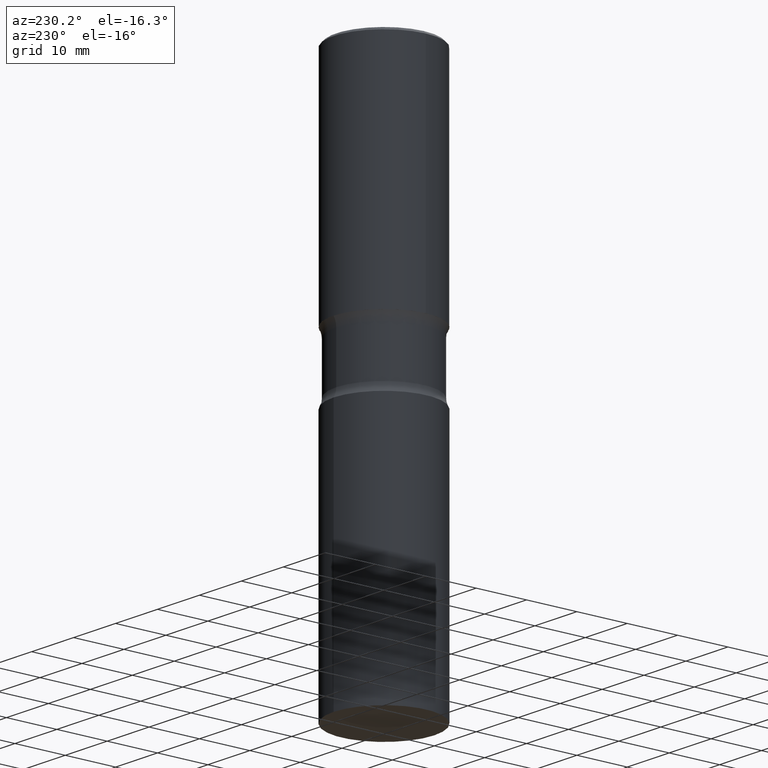
[diagram: clean part render]
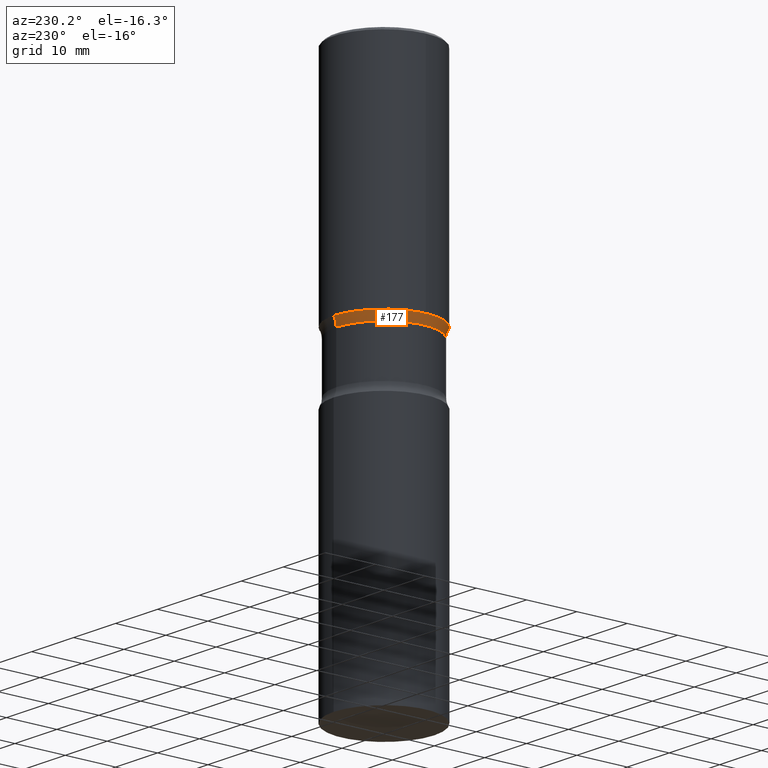
[diagram: same view with one face highlighted and labeled with its STEP entity id]
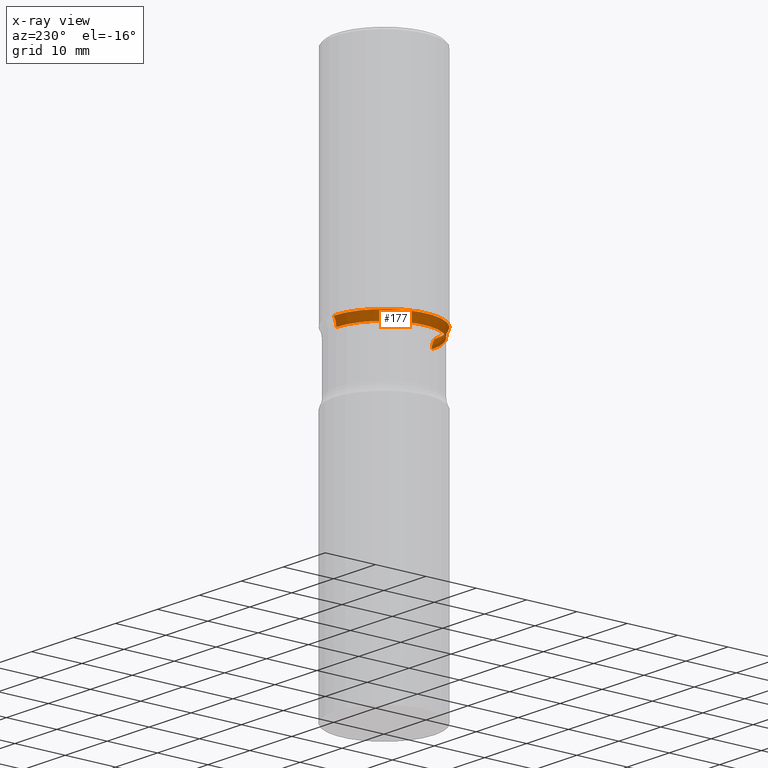
[diagram: x-ray of the same camera — body ghosted, the highlighted face saturated]
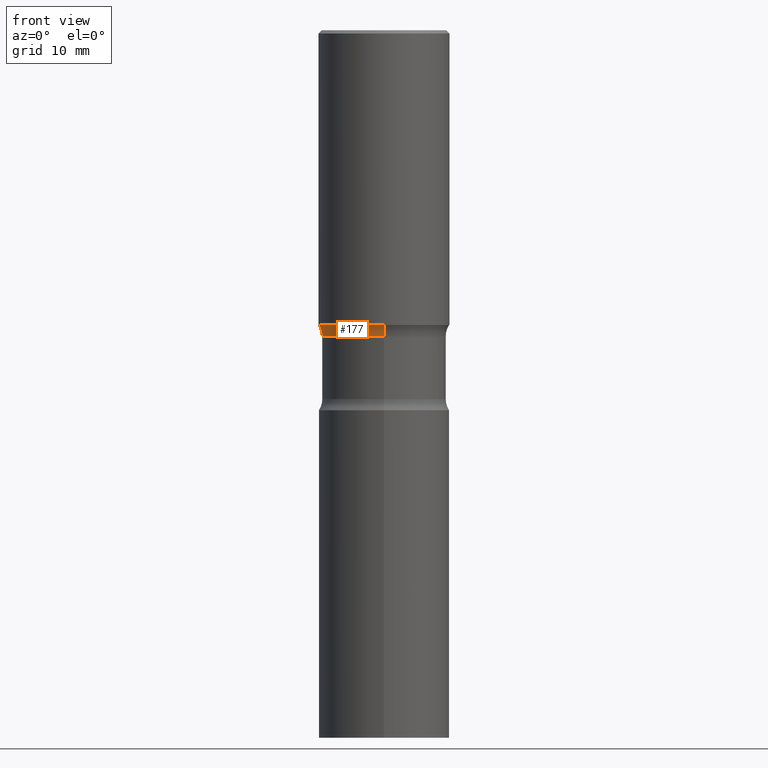
[diagram: same view with one face highlighted and labeled with its STEP entity id]
A machine part, auxiliary view. The second image highlights one B-rep face of the part: STEP entity #177.
The next image is the same camera in x-ray: the body ghosted, the highlighted face saturated — about 1% of this face is hidden behind the body in this view.
A second angle (front view) of the same face is appended — the face is thin or edge-on in the first view.
In plain terms, the highlighted toroidal blend (fillet) surface has major radius 12.6619 mm and minor (blend) radius 3.175 mm.
Its self-contained STEP definition (entity closure, byte-faithful):
#20 = CARTESIAN_POINT ( 'NONE',  ( 2.749192406205126998E-15, 0.3936999999999938882, -1.771700000000000941 ) ) ;
#21 = VERTEX_POINT ( 'NONE', #254 ) ;
#27 = CARTESIAN_POINT ( 'NONE',  ( 4.499251595492830041E-29, -6.423738853135956332E-15, -1.839831930840098329 ) ) ;
#42 = AXIS2_PLACEMENT_3D ( 'NONE', #407, #76, #258 ) ;
#53 = AXIS2_PLACEMENT_3D ( 'NONE', #154, #256, #464 ) ;
#58 = EDGE_CURVE ( 'NONE', #419, #276, #338, .T. ) ;
#69 = FACE_OUTER_BOUND ( 'NONE', #287, .T. ) ;
#76 = DIRECTION ( 'NONE',  ( 2.422342619709238593E-29, -3.524599354137422645E-15, -1.000000000000000000 ) ) ;
#87 = CIRCLE ( 'NONE', #42, 0.3937000000000000499 ) ;
#103 = CARTESIAN_POINT ( 'NONE',  ( -2.631687031945114564E-15, -0.3735000000000064380, -1.839831930840096996 ) ) ;
#109 = DIRECTION ( 'NONE',  ( -6.982962677686265133E-15, -1.000000000000000000, 0.000000000000000000 ) ) ;
#116 = EDGE_CURVE ( 'NONE', #21, #402, #87, .T. ) ;
#142 = DIRECTION ( 'NONE',  ( 2.422342619709238593E-29, -3.524599354137422645E-15, -1.000000000000000000 ) ) ;
#154 = CARTESIAN_POINT ( 'NONE',  ( -3.419958251889063102E-15, -0.4985000000000064380, -1.839831930840096774 ) ) ;
#165 = CIRCLE ( 'NONE', #53, 0.1250000000000000278 ) ;
#177 = ADVANCED_FACE ( 'NONE', ( #69 ), #305, .F. ) ;
#183 = DIRECTION ( 'NONE',  ( 2.422342619709238593E-29, -3.524599354137422645E-15, -1.000000000000000000 ) ) ;
#193 = ORIENTED_EDGE ( 'NONE', *, *, #440, .T. ) ;
#203 = DIRECTION ( 'NONE',  ( 6.982962677686265922E-15, 1.000000000000000000, -3.657092360996336056E-15 ) ) ;
#232 = CARTESIAN_POINT ( 'NONE',  ( 2.608136560115865171E-15, 0.3734999999999935594, -1.839831930840099661 ) ) ;
#254 = CARTESIAN_POINT ( 'NONE',  ( -2.700978061722607865E-15, -0.3937000000000062117, -1.771699999999998276 ) ) ;
#256 = DIRECTION ( 'NONE',  ( 1.000000000000000000, -6.860497997771530774E-15, 4.840393300909900172E-29 ) ) ;
#258 = DIRECTION ( 'NONE',  ( 6.982962677686265133E-15, 1.000000000000000000, -3.469453890861395573E-15 ) ) ;
#276 = VERTEX_POINT ( 'NONE', #232 ) ;
#282 = EDGE_CURVE ( 'NONE', #276, #402, #376, .T. ) ;
#287 = EDGE_LOOP ( 'NONE', ( #362, #193, #324, #441 ) ) ;
#305 = TOROIDAL_SURFACE ( 'NONE', #329, 0.4984999999999999987, 0.1250000000000000278 ) ;
#324 = ORIENTED_EDGE ( 'NONE', *, *, #116, .T. ) ;
#329 = AXIS2_PLACEMENT_3D ( 'NONE', #27, #183, #373 ) ;
#338 = CIRCLE ( 'NONE', #356, 0.3734999999999999987 ) ;
#353 = DIRECTION ( 'NONE',  ( -1.000000000000000000, 6.982962677686265922E-15, -4.883557194083112340E-29 ) ) ;
#356 = AXIS2_PLACEMENT_3D ( 'NONE', #455, #142, #203 ) ;
#362 = ORIENTED_EDGE ( 'NONE', *, *, #58, .F. ) ;
#373 = DIRECTION ( 'NONE',  ( 6.982962677686265922E-15, 1.000000000000000000, -3.524599354137422251E-15 ) ) ;
#376 = CIRCLE ( 'NONE', #413, 0.1250000000000000278 ) ;
#402 = VERTEX_POINT ( 'NONE', #20 ) ;
#407 = CARTESIAN_POINT ( 'NONE',  ( 4.345236855569004281E-29, -6.167813897889988397E-15, -1.771699999999999608 ) ) ;
#413 = AXIS2_PLACEMENT_3D ( 'NONE', #503, #353, #109 ) ;
#419 = VERTEX_POINT ( 'NONE', #103 ) ;
#440 = EDGE_CURVE ( 'NONE', #419, #21, #165, .T. ) ;
#441 = ORIENTED_EDGE ( 'NONE', *, *, #282, .F. ) ;
#455 = CARTESIAN_POINT ( 'NONE',  ( 4.510275735406058081E-29, -6.407951657325135987E-15, -1.839831930840098329 ) ) ;
#464 = DIRECTION ( 'NONE',  ( 6.860497997771532351E-15, 1.000000000000000000, 0.000000000000000000 ) ) ;
#503 = CARTESIAN_POINT ( 'NONE',  ( 3.481006894826648905E-15, 0.4984999999999936149, -1.839831930840100105 ) ) ;